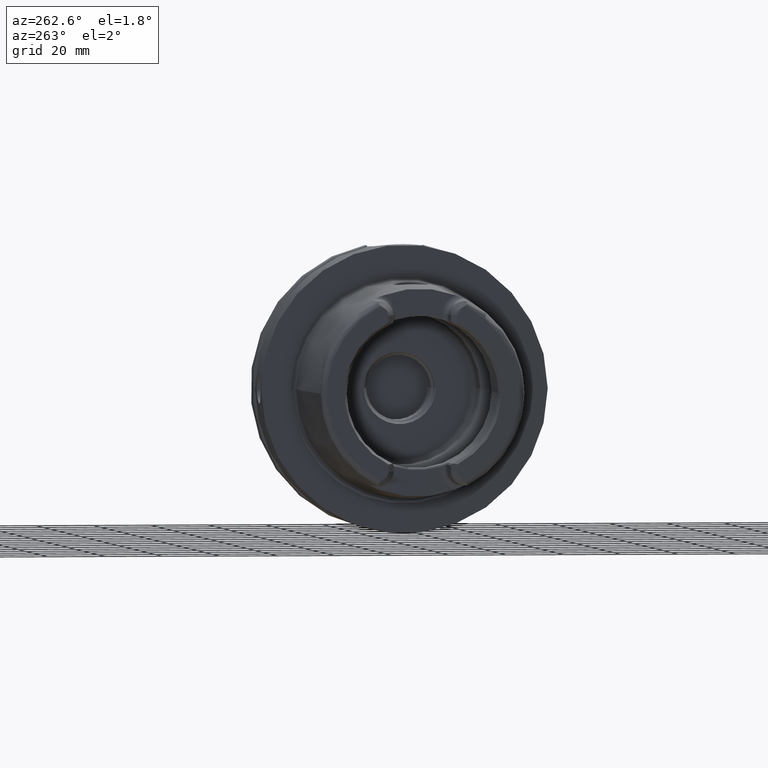
[diagram: clean part render]
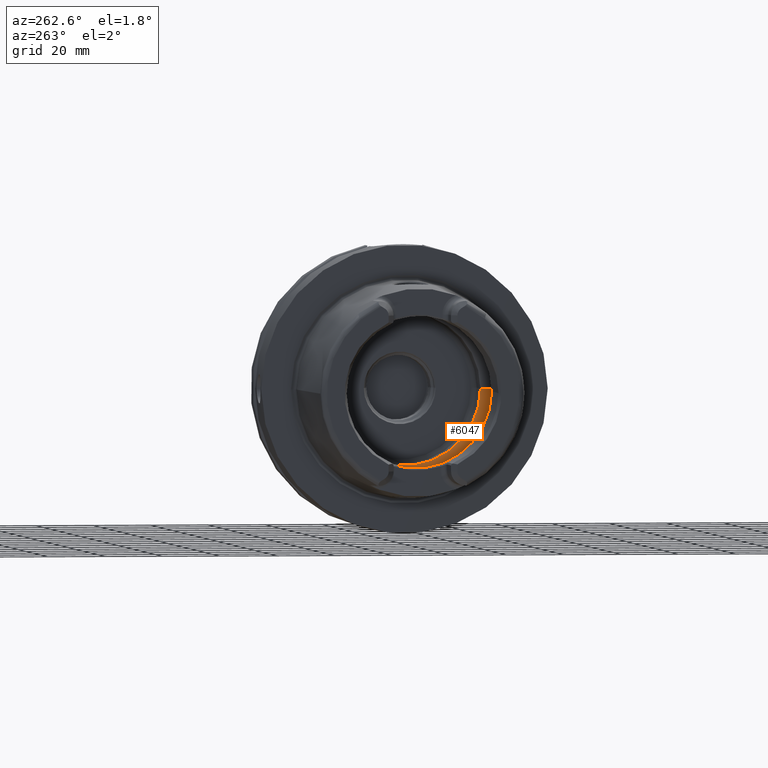
[diagram: same view with one face highlighted and labeled with its STEP entity id]
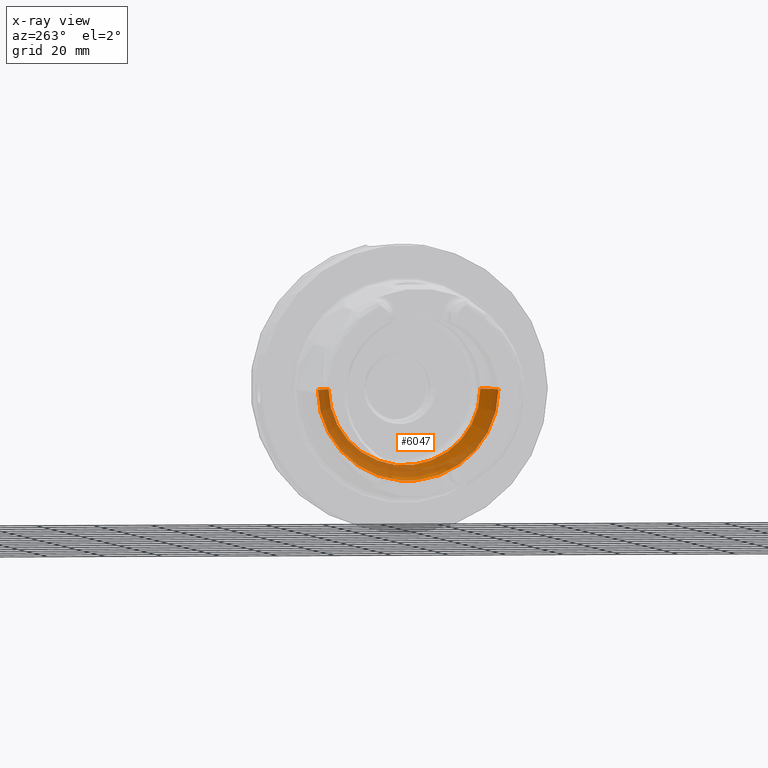
[diagram: x-ray of the same camera — body ghosted, the highlighted face saturated]
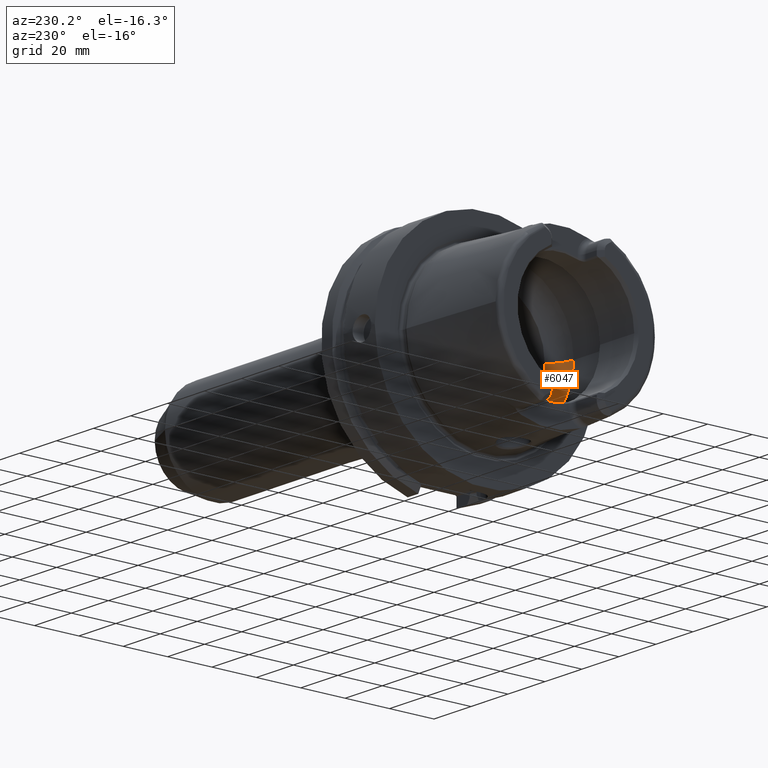
[diagram: same view with one face highlighted and labeled with its STEP entity id]
A machine part, auxiliary view. The second image highlights one B-rep face of the part: STEP entity #6047.
The next image is the same camera in x-ray: the body ghosted, the highlighted face saturated — about 64% of this face is hidden behind the body in this view.
A second angle (auxiliary view) of the same face is appended — the face is thin or edge-on in the first view.
In plain terms, the highlighted toroidal blend (fillet) surface has major radius 19.5 mm and minor (blend) radius 12 mm.
Its self-contained STEP definition (entity closure, byte-faithful):
#2371=CARTESIAN_POINT('',(-9.846794344809E0,0.E0,0.E0));
#2372=DIRECTION('',(-1.E0,0.E0,0.E0));
#2373=DIRECTION('',(0.E0,-9.756145662299E-2,-9.952295022665E-1));
#2374=AXIS2_PLACEMENT_3D('',#2371,#2372,#2373);
#2384=CARTESIAN_POINT('',(-9.846794344809E0,0.E0,0.E0));
#2385=DIRECTION('',(-1.E0,0.E0,0.E0));
#2386=DIRECTION('',(0.E0,1.E0,0.E0));
#2387=AXIS2_PLACEMENT_3D('',#2384,#2385,#2386);
#2389=CARTESIAN_POINT('',(-9.846794344809E0,3.073185883624E0,
-3.134972932139E1));
#2390=CARTESIAN_POINT('',(-9.738537060689E0,2.891656984993E0,
-3.136752443672E1));
#2391=CARTESIAN_POINT('',(-9.539962893717E0,2.515101251431E0,
-3.139831839188E1));
#2392=CARTESIAN_POINT('',(-9.301049424477E0,1.913783257480E0,
-3.143197673752E1));
#2393=CARTESIAN_POINT('',(-9.127438432729E0,1.286303015996E0,
-3.145454039544E1));
#2394=CARTESIAN_POINT('',(-9.022899506342E0,6.437010581526E-1,
-3.146736051152E1));
#2395=CARTESIAN_POINT('',(-9.E0,2.141354428497E-1,-3.147008518506E1));
#2396=CARTESIAN_POINT('',(-9.E0,0.E0,-3.147008518506E1));
#2398=CARTESIAN_POINT('',(-9.846794344809E0,1.95E1,0.E0));
#2399=DIRECTION('',(0.E0,0.E0,1.E0));
#2400=DIRECTION('',(8.122328620674E-1,5.833333333333E-1,0.E0));
#2401=AXIS2_PLACEMENT_3D('',#2398,#2399,#2400);
#2403=CARTESIAN_POINT('',(-1.E-1,0.E0,0.E0));
#2404=DIRECTION('',(-1.E0,0.E0,0.E0));
#2405=DIRECTION('',(0.E0,1.E0,0.E0));
#2406=AXIS2_PLACEMENT_3D('',#2403,#2404,#2405);
#2408=CARTESIAN_POINT('',(-9.846794344809E0,-1.95E1,0.E0));
#2409=DIRECTION('',(0.E0,0.E0,-1.E0));
#2410=DIRECTION('',(8.122328620674E-1,-5.833333333333E-1,0.E0));
#2411=AXIS2_PLACEMENT_3D('',#2408,#2409,#2410);
#2413=CARTESIAN_POINT('',(-9.E0,0.E0,-3.147008518506E1));
#2414=CARTESIAN_POINT('',(-9.E0,-2.140673862591E-1,-3.147008518506E1));
#2415=CARTESIAN_POINT('',(-9.022884475739E0,-6.435227636510E-1,
-3.146736230982E1));
#2416=CARTESIAN_POINT('',(-9.127385021154E0,-1.286046048393E0,
-3.145454700706E1));
#2417=CARTESIAN_POINT('',(-9.300956096822E0,-1.913519178713E0,
-3.143198945276E1));
#2418=CARTESIAN_POINT('',(-9.539929943663E0,-2.515045104426E0,
-3.139832356097E1));
#2419=CARTESIAN_POINT('',(-9.738527185842E0,-2.891640426569E0,
-3.136752605993E1));
#2420=CARTESIAN_POINT('',(-9.846794344809E0,-3.073185883624E0,
-3.134972932139E1));
#2913=CARTESIAN_POINT('',(-1.E-1,2.65E1,0.E0));
#2914=VERTEX_POINT('',#2913);
#2915=CARTESIAN_POINT('',(-9.846794344809E0,3.15E1,0.E0));
#2916=VERTEX_POINT('',#2915);
#2925=CARTESIAN_POINT('',(-1.E-1,-2.65E1,0.E0));
#2926=VERTEX_POINT('',#2925);
#2927=CARTESIAN_POINT('',(-9.846794344809E0,-3.15E1,0.E0));
#2928=VERTEX_POINT('',#2927);
#3098=VERTEX_POINT('',#2389);
#3099=VERTEX_POINT('',#2396);
#3100=VERTEX_POINT('',#2420);
#6032=CARTESIAN_POINT('',(-9.846794344809E0,0.E0,0.E0));
#6033=DIRECTION('',(1.E0,0.E0,0.E0));
#6034=DIRECTION('',(0.E0,-1.E0,0.E0));
#6035=AXIS2_PLACEMENT_3D('',#6032,#6033,#6034);
#6036=TOROIDAL_SURFACE('',#6035,1.95E1,1.2E1);
#6037=ORIENTED_EDGE('',*,*,#5970,.F.);
#6038=ORIENTED_EDGE('',*,*,#6027,.F.);
#6039=ORIENTED_EDGE('',*,*,#5989,.F.);
#6041=ORIENTED_EDGE('',*,*,#6040,.T.);
#6042=ORIENTED_EDGE('',*,*,#5985,.T.);
#6043=ORIENTED_EDGE('',*,*,#6021,.F.);
#6044=ORIENTED_EDGE('',*,*,#5694,.F.);
#6045=EDGE_LOOP('',(#6037,#6038,#6039,#6041,#6042,#6043,#6044));
#6046=FACE_OUTER_BOUND('',#6045,.F.);
#6047=ADVANCED_FACE('',(#6046),#6036,.F.);
#2375=CIRCLE('',#2374,3.15E1);
#2388=CIRCLE('',#2387,3.15E1);
#2397=B_SPLINE_CURVE_WITH_KNOTS('',3,(#2389,#2390,#2391,#2392,#2393,#2394,#2395,
#2396),.UNSPECIFIED.,.F.,.F.,(4,1,1,1,1,4),(0.E0,2.E-1,4.E-1,6.E-1,8.E-1,1.E0),
.UNSPECIFIED.);
#2402=CIRCLE('',#2401,1.2E1);
#2407=CIRCLE('',#2406,2.65E1);
#2412=CIRCLE('',#2411,1.2E1);
#2421=B_SPLINE_CURVE_WITH_KNOTS('',3,(#2413,#2414,#2415,#2416,#2417,#2418,#2419,
#2420),.UNSPECIFIED.,.F.,.F.,(4,1,1,1,1,4),(0.E0,2.E-1,4.E-1,6.E-1,8.E-1,1.E0),
.UNSPECIFIED.);
#5694=EDGE_CURVE('',#3099,#3100,#2421,.T.);
#5970=EDGE_CURVE('',#3098,#3099,#2397,.T.);
#5985=EDGE_CURVE('',#2926,#2928,#2412,.T.);
#5989=EDGE_CURVE('',#2914,#2916,#2402,.T.);
#6021=EDGE_CURVE('',#3100,#2928,#2375,.T.);
#6027=EDGE_CURVE('',#2916,#3098,#2388,.T.);
#6040=EDGE_CURVE('',#2914,#2926,#2407,.T.);